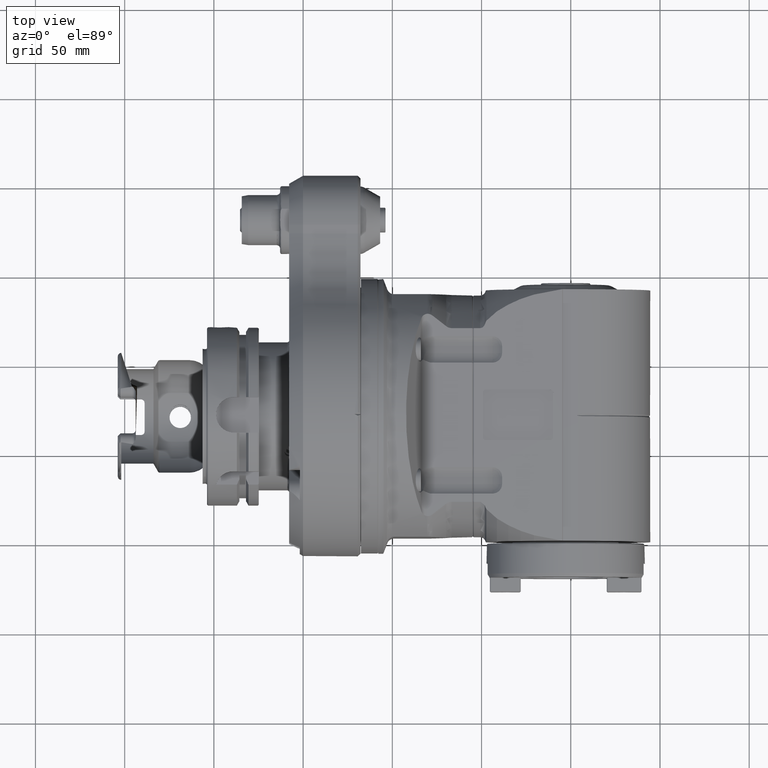
[diagram: clean part render]
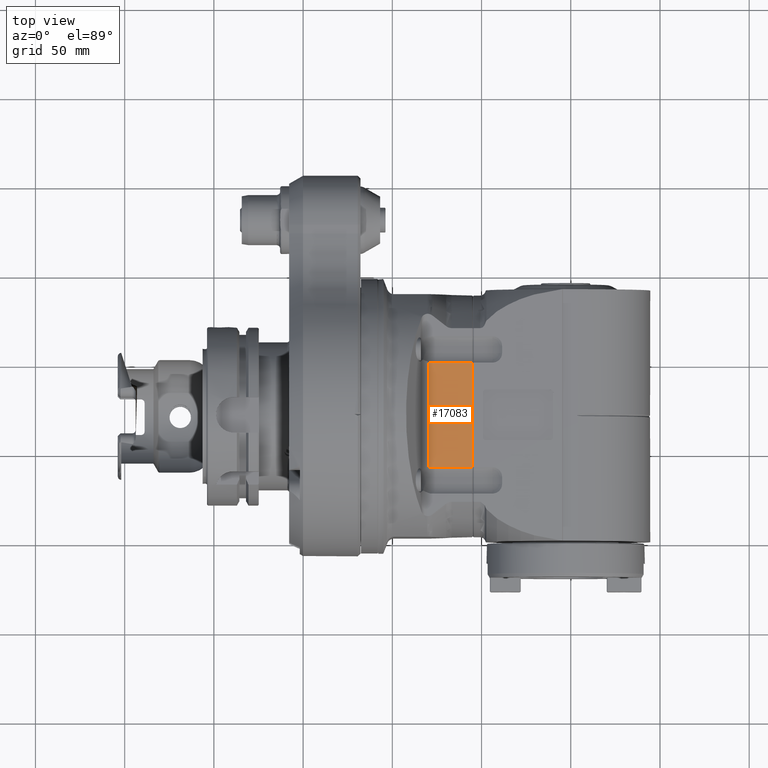
[diagram: same view with one face highlighted and labeled with its STEP entity id]
A machine part, top view. The second image highlights one B-rep face of the part: STEP entity #17083.
In plain terms, the highlighted planar face has unit normal (-0, 0, -1).
Its self-contained STEP definition (entity closure, byte-faithful):
#1204=PLANE('',#18830);
#2064=FACE_OUTER_BOUND('',#3105,.T.);
#3105=EDGE_LOOP('',(#14779,#14780,#14781,#14782,#14783,#14784));
#4173=LINE('',#42692,#5480);
#4175=LINE('',#42699,#5482);
#4176=LINE('',#42703,#5483);
#4177=LINE('',#42704,#5484);
#5480=VECTOR('',#22882,22.5);
#5482=VECTOR('',#22888,59.46724184205);
#5483=VECTOR('',#22891,22.49999999982);
#5484=VECTOR('',#22892,58.69397595347);
#6640=CIRCLE('',#18831,5.361902647382);
#6641=CIRCLE('',#18832,5.361902647382);
#7989=VERTEX_POINT('',#42685);
#7990=VERTEX_POINT('',#42691);
#7992=VERTEX_POINT('',#42697);
#7993=VERTEX_POINT('',#42698);
#7994=VERTEX_POINT('',#42700);
#7995=VERTEX_POINT('',#42702);
#10382=EDGE_CURVE('',#7990,#7989,#4173,.T.);
#10385=EDGE_CURVE('',#7992,#7993,#4175,.T.);
#10386=EDGE_CURVE('',#7994,#7992,#6640,.T.);
#10387=EDGE_CURVE('',#7995,#7994,#4176,.T.);
#10388=EDGE_CURVE('',#7995,#7989,#4177,.T.);
#10389=EDGE_CURVE('',#7990,#7993,#6641,.T.);
#14779=ORIENTED_EDGE('',*,*,#10385,.F.);
#14780=ORIENTED_EDGE('',*,*,#10386,.F.);
#14781=ORIENTED_EDGE('',*,*,#10387,.F.);
#14782=ORIENTED_EDGE('',*,*,#10388,.T.);
#14783=ORIENTED_EDGE('',*,*,#10382,.F.);
#14784=ORIENTED_EDGE('',*,*,#10389,.T.);
#17083=ADVANCED_FACE('',(#2064),#1204,.F.);
#18830=AXIS2_PLACEMENT_3D('',#42696,#22886,#22887);
#18831=AXIS2_PLACEMENT_3D('',#42701,#22889,#22890);
#18832=AXIS2_PLACEMENT_3D('',#42705,#22893,#22894);
#22882=DIRECTION('',(0.999999999999998,-5.78813983212199E-8,2.381612015749E-8));
#22886=DIRECTION('center_axis',(0.,0.,-1.));
#22887=DIRECTION('ref_axis',(-1.,0.,0.));
#22888=DIRECTION('',(0.,1.,0.));
#22889=DIRECTION('center_axis',(0.,0.,1.));
#22890=DIRECTION('ref_axis',(9.791011415933E-11,1.,0.));
#22891=DIRECTION('',(-0.999999999999998,-5.78821353913299E-8,-2.381652658812E-8));
#22892=DIRECTION('',(0.,1.,-1.562870221287E-13));
#22893=DIRECTION('center_axis',(0.,0.,-1.));
#22894=DIRECTION('ref_axis',(3.949003724637E-13,-1.,0.));
#42685=CARTESIAN_POINT('',(40.4999999726852,29.3469887109007,47.5000004198541));
#42691=CARTESIAN_POINT('',(18.,29.34698927909,47.5));
#42692=CARTESIAN_POINT('',(18.,29.34698927909,47.5));
#42696=CARTESIAN_POINT('Origin',(39.5,92.4000024,47.5));
#42697=CARTESIAN_POINT('',(16.00083056686,-29.73362092102,47.5));
#42698=CARTESIAN_POINT('',(16.00083056686,29.73362092102,47.5));
#42699=CARTESIAN_POINT('',(16.00083056686,-29.73362092102,47.5));
#42700=CARTESIAN_POINT('',(18.00000000052,-29.34698927909,47.5));
#42701=CARTESIAN_POINT('Origin',(18.,-34.70889192647,47.5));
#42702=CARTESIAN_POINT('',(40.4999999726859,-29.3469887108818,47.5000004198611));
#42703=CARTESIAN_POINT('',(40.5,-29.34698797671,47.50000053587));
#42704=CARTESIAN_POINT('',(40.5,-29.34698797671,47.50000053587));
#42705=CARTESIAN_POINT('Origin',(18.,34.70889192647,47.5));